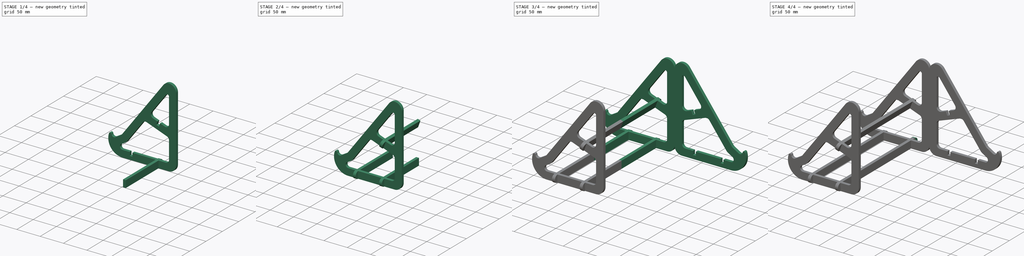
[diagram: build sequence overview — one tinted view per stage of 4, left to right]
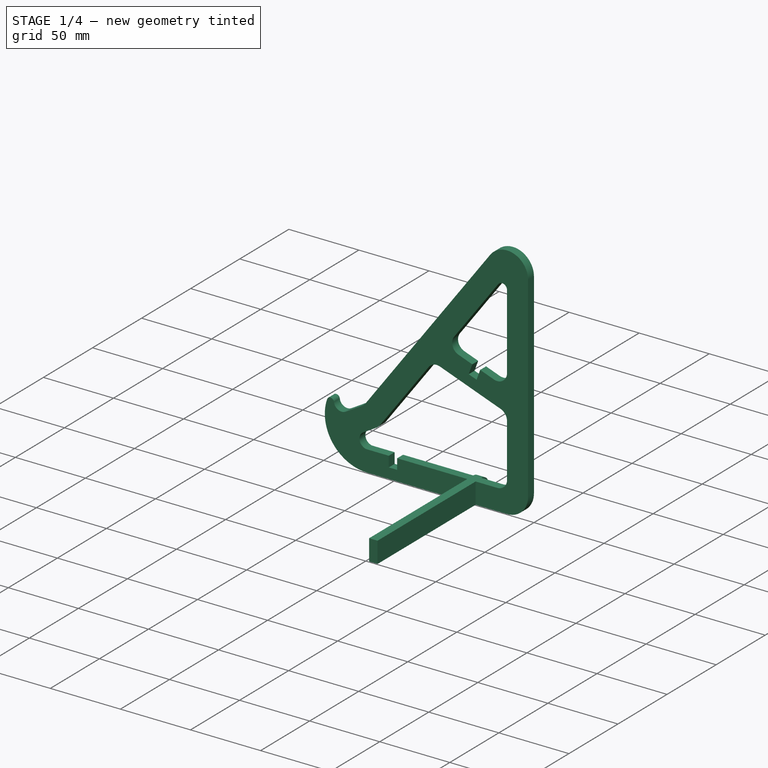
[diagram: stage 1 of 4 — iso view after this stage's code; geometry added in this stage tinted green]
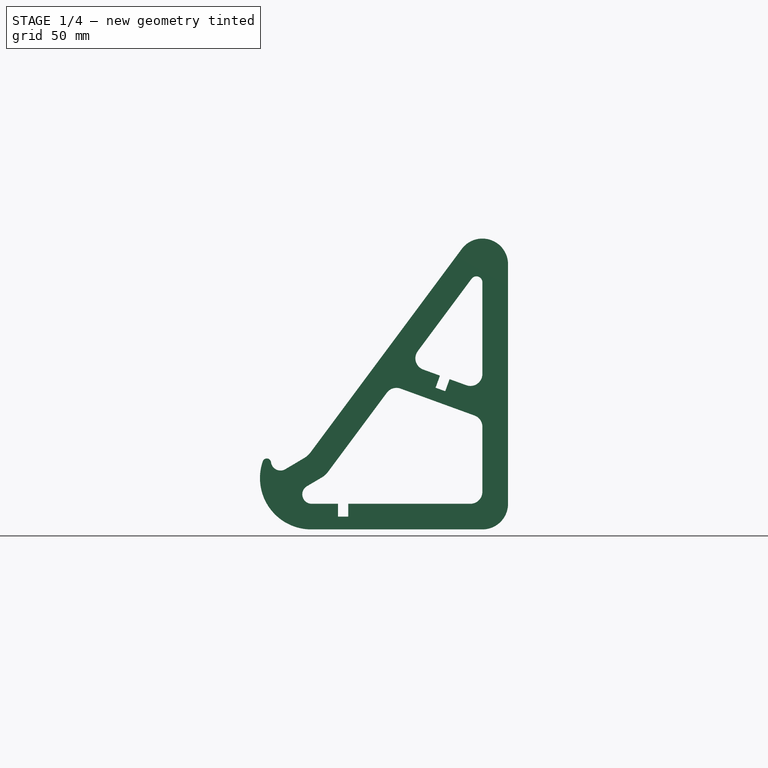
[diagram: stage 1 of 4 — front view after this stage's code; geometry added in this stage tinted green]
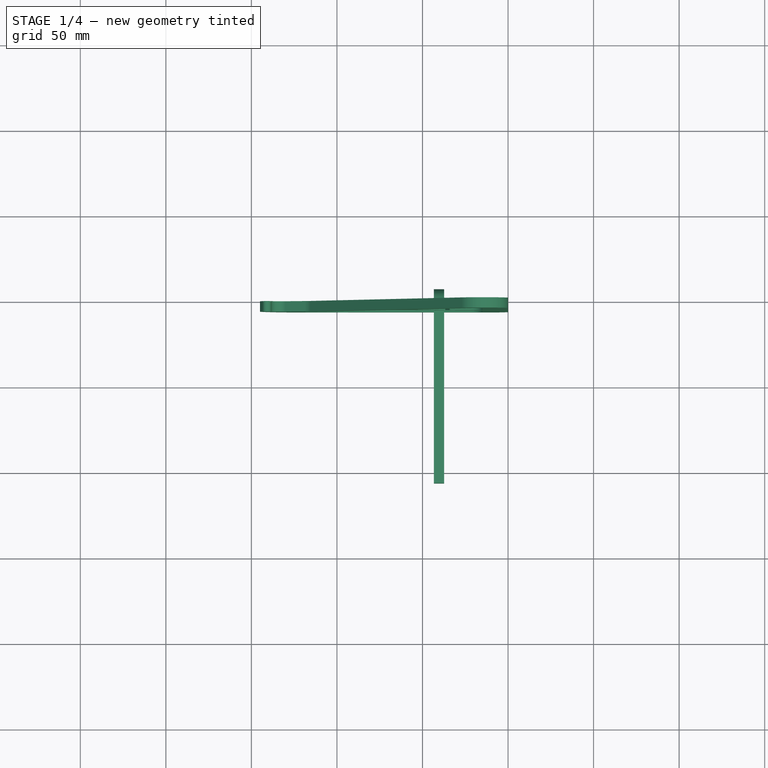
[diagram: stage 1 of 4 — top view after this stage's code; geometry added in this stage tinted green]
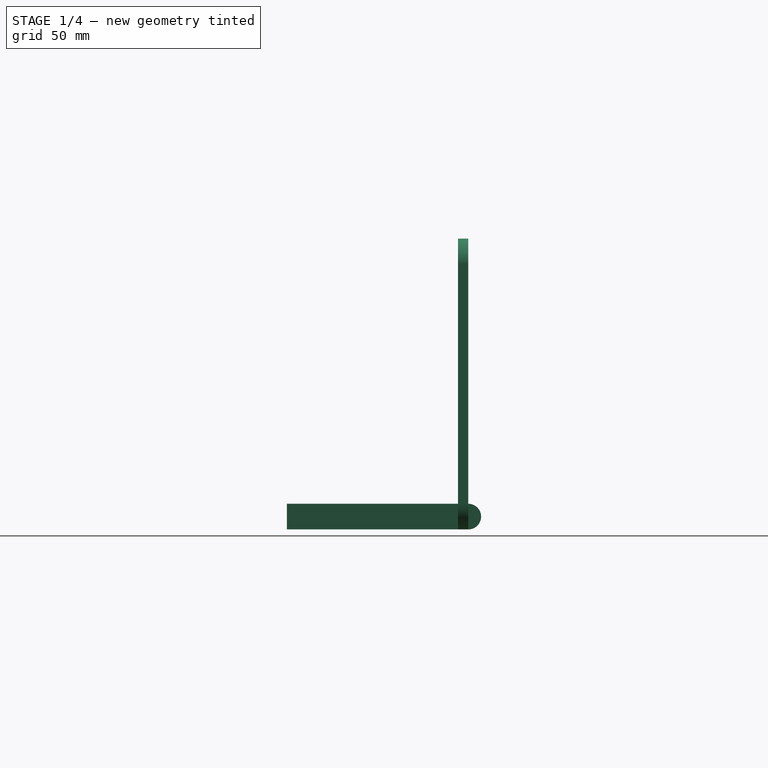
[diagram: stage 1 of 4 — right view after this stage's code; geometry added in this stage tinted green]
FCSTD DOCUMENT  (FreeCAD 0.19R24291 (Git))
Label: laptop-stand
License: All rights reserved
LicenseURL: http://en.wikipedia.org/wiki/All_rights_reserved
objects: PartDesign::Pad×5, PartDesign::ShapeBinder×5, PartDesign::Plane×5, Sketcher::SketchObject×4, PartDesign::Body×4, PartDesign::Mirrored×4, Part::Part2DObjectPython×3, Image::ImagePlane×1, Spreadsheet::Sheet×1, Part::Mirroring×1
note: 36 computed .brp shape members not serialized (recipe doc carries the construction recipe); baked Part::Feature solids carry a one-line shape summary decoded from their .brp

FEATURE [Sketcher::SketchObject] Sketch
  FullyConstrained = true
  MapMode = 5
  Placement = pos=(0,0,0) rot=(1,0,0;1.5708rad)
  Support = -> [XZ_Plane]
  expr: Constraints[86] = <<Params>>.material
  expr: Constraints[60] = <<Params>>.bezel
  expr: Constraints[108] = <<Params>>.material
  expr: Constraints[109] = <<Params>>.material
  expr: Constraints[33] = <<Params>>.bezel
  expr: Constraints[32] = <<Params>>.bezel
  expr: Constraints[38] = <<Params>>.bezel
  expr: Constraints[3] = <<Params>>.bezel
  expr: Constraints[64] = <<Params>>.bezel
  expr: Constraints[106] = <<Params>>.bezel / 2
  expr: Constraints[140] = <<Params>>.bezel
  expr: Constraints[5] = <<Params>>.bezel
  expr: Constraints[110] = <<Params>>.bezel / 2
  expr: Constraints[92] = <<Params>>.bezel / 2
  sketch-geometry (51):
    g0: LineSegment StartX=0 StartY=15 StartZ=0 EndX=0 EndY=155 EndZ=0
    g1: LineSegment StartX=-27.0376 StartY=163.95 StartZ=0 EndX=-115.514 EndY=44.9471 EndZ=0
    g2: ArcOfCircle CenterX=-15 CenterY=155 CenterZ=0 NormalX=0 NormalY=0 NormalZ=1 AngleXU=0 Radius=15 StartAngle=4e-16 EndAngle=2.50228
    g3: ArcOfCircle CenterX=-15 CenterY=15 CenterZ=0 NormalX=0 NormalY=0 NormalZ=1 AngleXU=0 Radius=15 StartAngle=4.71239 EndAngle=6.28319
    g4: LineSegment StartX=-15 StartY=0 StartZ=0 EndX=-115 EndY=0 EndZ=0
    g5: LineSegment StartX=-118.974 StartY=41.8306 StartZ=0 EndX=-130.157 EndY=35.2031 EndZ=0
    g6: ArcOfCircle CenterX=-125 CenterY=52 CenterZ=0 NormalX=0 NormalY=0 NormalZ=1 AngleXU=0 Radius=11.8209 StartAngle=5.24735 EndAngle=5.64387
    g7: ArcOfCircle CenterX=-115 CenterY=30 CenterZ=0 NormalX=0 NormalY=0 NormalZ=1 AngleXU=0 Radius=30 StartAngle=2.80835 EndAngle=4.71239
    g8: ArcOfCircle CenterX=-133 CenterY=40 CenterZ=0 NormalX=0 NormalY=0 NormalZ=1 AngleXU=0 Radius=5.57589 StartAngle=3.26595 EndAngle=5.24735
    g9: ArcOfCircle CenterX=-141 CenterY=39 CenterZ=0 NormalX=0 NormalY=0 NormalZ=1 AngleXU=0 Radius=2.48637 StartAngle=0.124355 EndAngle=2.80835
    g10: LineSegment StartX=-15 StartY=15 StartZ=0 EndX=-15 EndY=64.9015 EndZ=0
    g11: LineSegment StartX=-15 StartY=15 StartZ=0 EndX=-134.827 EndY=15 EndZ=0
    g12: LineSegment StartX=-106.691 StartY=31.6733 StartZ=0 EndX=-67.7202 EndY=84.09 EndZ=0
    g13: LineSegment StartX=-67.7202 StartY=84.09 StartZ=0 EndX=-15 EndY=64.9015 EndZ=0
    g14: LineSegment StartX=-106.691 StartY=31.6733 StartZ=0 EndX=-134.827 EndY=15 EndZ=0
    g15: LineSegment StartX=-67.7202 StartY=84.09 StartZ=0 EndX=-79.7578 EndY=93.0397 EndZ=0
    g16: ArcOfCircle CenterX=-114.757 CenterY=20.5 CenterZ=0 NormalX=0 NormalY=0 NormalZ=1 AngleXU=0 Radius=5.5 StartAngle=2.10576 EndAngle=4.71239
    g17: ArcOfCircle CenterX=-22 CenterY=22 CenterZ=0 NormalX=0 NormalY=0 NormalZ=1 AngleXU=0 Radius=7 StartAngle=4.71239 EndAngle=6.28319
    g18: ArcOfCircle CenterX=-22 CenterY=60 CenterZ=0 NormalX=0 NormalY=0 NormalZ=1 AngleXU=0 Radius=7 StartAngle=-9e-16 EndAngle=1.22173
    g19: ArcOfCircle CenterX=-65.214 CenterY=75.7286 CenterZ=0 NormalX=0 NormalY=0 NormalZ=1 AngleXU=0 Radius=7 StartAngle=1.22173 EndAngle=2.50228
    g20: LineSegment StartX=-58.3798 StartY=96.6531 StartZ=0 EndX=-15 EndY=155 EndZ=0
    g21: LineSegment StartX=-15 StartY=155 StartZ=0 EndX=-15 EndY=80.8641 EndZ=0
    g22: LineSegment StartX=-15 StartY=80.8641 StartZ=0 EndX=-58.3798 EndY=96.6531 EndZ=0
    g23: LineSegment StartX=-58.3798 StartY=96.6531 StartZ=0 EndX=-70.4174 EndY=105.603 EndZ=0
    g24: ArcOfCircle CenterX=-22 CenterY=90.8612 CenterZ=0 NormalX=0 NormalY=0 NormalZ=1 AngleXU=0 Radius=7 StartAngle=4.36332 EndAngle=6.28319
    g25: ArcOfCircle CenterX=-47.156 CenterY=100.017 CenterZ=0 NormalX=0 NormalY=0 NormalZ=1 AngleXU=0 Radius=7 StartAngle=2.50228 EndAngle=4.36332
    g26: ArcOfCircle CenterX=-18.5 CenterY=144.426 CenterZ=0 NormalX=0 NormalY=0 NormalZ=1 AngleXU=0 Radius=3.5 StartAngle=6.28319 EndAngle=8.78546
    g27: LineSegment StartX=-39.7912 StartY=89.8874 StartZ=0 EndX=-42.3564 EndY=82.8397 EndZ=0
    g28: LineSegment StartX=-42.3564 StartY=82.8397 StartZ=0 EndX=-36.7182 EndY=80.7876 EndZ=0
    g29: LineSegment StartX=-36.7182 StartY=80.7876 StartZ=0 EndX=-34.1531 EndY=87.8353 EndZ=0
    g30: LineSegment StartX=-24.3941 StartY=84.2833 StartZ=0 EndX=-34.1531 EndY=87.8353 EndZ=0
    g31: LineSegment StartX=-49.5501 StartY=93.4393 StartZ=0 EndX=-39.7912 EndY=89.8874 EndZ=0
    g32: LineSegment StartX=-37.3787 StartY=15 StartZ=0 EndX=-37.3787 EndY=7.5 EndZ=0
    g33: LineSegment StartX=-37.3787 StartY=7.5 StartZ=0 EndX=-43.3787 EndY=7.5 EndZ=0
    g34: LineSegment StartX=-43.3787 StartY=7.5 StartZ=0 EndX=-43.3787 EndY=15 EndZ=0
    g35: LineSegment StartX=-99.3787 StartY=15 StartZ=0 EndX=-99.3787 EndY=7.5 EndZ=0
    g36: LineSegment StartX=-99.3787 StartY=7.5 StartZ=0 EndX=-93.3787 EndY=7.5 EndZ=0
    g37: LineSegment StartX=-93.3787 StartY=7.5 StartZ=0 EndX=-93.3787 EndY=15 EndZ=0
    g38: LineSegment StartX=-114.757 StartY=15 StartZ=0 EndX=-99.3787 EndY=15 EndZ=0
    g39: LineSegment StartX=-37.3787 StartY=15 StartZ=0 EndX=-22 EndY=15 EndZ=0
    g40: LineSegment StartX=-93.3787 StartY=15 StartZ=0 EndX=-43.3787 EndY=15 EndZ=0
    g41: LineSegment StartX=-15 StartY=60 StartZ=0 EndX=-15 EndY=22 EndZ=0
    g42: LineSegment StartX=-62.8199 StartY=82.3065 StartZ=0 EndX=-19.6059 EndY=66.5778 EndZ=0
    g43: LineSegment StartX=-15 StartY=144.426 StartZ=0 EndX=-15 EndY=90.8612 EndZ=0
    g44: LineSegment StartX=-21.3088 StartY=146.515 StartZ=0 EndX=-52.7735 EndY=104.194 EndZ=0
    g45: LineSegment StartX=-118.974 StartY=41.8306 StartZ=0 EndX=-115.514 EndY=44.9471 EndZ=0
    g46: LineSegment StartX=-117.244 StartY=43.3889 StartZ=0 EndX=-106.691 EndY=31.6733 EndZ=0
    g47: ArcOfCircle CenterX=-114.76 CenterY=40.632 CenterZ=0 NormalX=0 NormalY=0 NormalZ=1 AngleXU=0 Radius=11.8209 StartAngle=5.24735 EndAngle=5.64387
    g48: LineSegment StartX=-117.561 StartY=25.2316 StartZ=0 EndX=-108.734 EndY=30.4626 EndZ=0
    g49: LineSegment StartX=-70.8316 StartY=79.9051 StartZ=0 EndX=-105.274 EndY=33.5791 EndZ=0
    g50: LineSegment StartX=-24.3941 StartY=84.2833 StartZ=0 EndX=-29.5244 EndY=70.1879 EndZ=0
  constraints (147):
    c: Tangent(g2,g1) = -1.5708
    c: Tangent(g2,g0) = -1.5708
    c: Vertical(g-1,g0)
    c: Radius(g2) = 15
    c: DistanceY(g0,g0) = 140
    c: Radius(g3) = 15
    c: Vertical(g0)
    c: Tangent(g3,g0) = -1.5708
    c: Horizontal(g4)
    c: Horizontal(g3,g-1)
    c: DistanceX(g4,g4) = 100
    c: Tangent(g4,g3) = 1.5708
    c: Tangent(g6,g1) = 1.5708
    c: Tangent(g6,g5) = 1.5708
    c: Radius(g7) = 30
    c: Tangent(g8,g5) = 1.5708
    c: Tangent(g9,g8) = 1.5708
    c: Tangent(g7,g4) = 1.5708
    c: Tangent(g7,g9) = -1.5708
    c: DistanceX(g9,g-1) = 141
    c: DistanceY(g-1,g9) = 39
    c: DistanceX(g8,g-1) = 133
    c: DistanceY(g-1,g8) = 40
    c: DistanceY(g-1,g6) = 52
    c: DistanceX(g6,g-1) = 125
    c: Distance(g5) = 13
    c: Horizontal(g11)
    c: Coincident(g13,g12)
    c: Coincident(g10,g13)
    c: Coincident(g11,g10)
    c: Coincident(g14,g12)
    c: Coincident(g11,g14)
    c: DistanceY(g-1,g10) = 15
    c: DistanceX(g10,g-1) = 15
    c: Parallel(g12,g1)
    c: Coincident(g15,g12)
    c: PointOnObject(g15,g1)
    c: Perpendicular(g1,g15)
    c: Distance(g15) = 15
    c: Parallel(g5,g14)
    c: PointOnObject(g16,g11)
    c: Tangent(g16,g14)
    c: Radius(g16) = 5.5
    c: PointOnObject(g17,g11)
    c: Tangent(g17,g11)
    c: Tangent(g17,g10)
    c: Radius(g17) = 7
    c: PointOnObject(g18,g10)
    c: Tangent(g18,g13)
    c: Radius(g18) = 7
    c: PointOnObject(g19,g12)
    c: Tangent(g13,g19)
    c: Tangent(g19,g12)
    c: Radius(g19) = 7
    c: Vertical(g21)
    c: Coincident(g22,g21)
    c: Coincident(g22,g20)
    c: Parallel(g22,g13)
    c: Parallel(g20,g1)
    c: Coincident(g21,g20)
    c: DistanceX(g21,g-1) = 15
    c: Coincident(g23,g20)
    c: PointOnObject(g23,g1)
    c: Perpendicular(g20,g23)
    c: Distance(g23) = 15
    c: PointOnObject(g24,g22)
    c: PointOnObject(g24,g21)
    c: Tangent(g24,g21)
    c: Tangent(g24,g22)
    c: Radius(g24) = 7
    c: PointOnObject(g25,g22)
    c: Tangent(g22,g25)
    c: Tangent(g25,g20)
    c: Radius(g25) = 7
    c: PointOnObject(g26,g20)
    c: PointOnObject(g26,g21)
    c: Tangent(g26,g20)
    c: Tangent(g21,g26)
    c: Radius(g26) = 3.5
    c: PointOnObject(g27,g22)
    c: Coincident(g28,g27)
    c: Coincident(g29,g28)
    c: PointOnObject(g29,g22)
    c: Perpendicular(g28,g27)
    c: Perpendicular(g28,g29)
    c: Perpendicular(g22,g27)
    c: Distance(g28) = 6
    c: Coincident(g30,g24)
    c: Coincident(g30,g29)
    c: Coincident(g31,g25)
    c: Coincident(g31,g27)
    c: Equal(g31,g30)
    c: Distance(g27) = 7.5
    c: PointOnObject(g32,g11)
    c: Vertical(g32)
    c: Coincident(g33,g32)
    c: Horizontal(g33)
    c: Coincident(g34,g33)
    c: PointOnObject(g34,g11)
    c: Vertical(g34)
    c: PointOnObject(g35,g11)
    c: Coincident(g36,g35)
    c: Horizontal(g36)
    c: PointOnObject(g37,g11)
    c: Vertical(g37)
    c: Vertical(g35)
    c: DistanceY(g37,g37) = 7.5
    c: Coincident(g36,g37)
    c: DistanceX(g36,g36) = 6
    c: DistanceX(g33,g33) = 6
    c: DistanceY(g34,g34) = 7.5
    c: Coincident(g39,g32)
    c: Equal(g39,g38)
    c: Coincident(g40,g37)
    c: DistanceX(g40,g40) = 50
    c: Coincident(g40,g34)
    c: Coincident(g35,g38)
    c: Coincident(g39,g17)
    c: Coincident(g41,g17)
    c: Coincident(g43,g26)
    c: Coincident(g44,g26)
    c: Coincident(g43,g24)
    c: Coincident(g45,g5)
    c: Coincident(g45,g1)
    c: PointOnObject(g46,g45)
    c: Symmetric(g1,g5,g46)
    c: Coincident(g12,g46)
    c: Tangent(g41,g18) = 1.5708
    c: PointOnObject(g47,g14)
    c: PointOnObject(g47,g12)
    c: Coincident(g49,g19)
    c: Vertical(g41)
    c: Tangent(g42,g19) = 1.5708
    c: Tangent(g42,g18) = 1.5708
    c: DistanceY(g-1,g18) = 60
    c: Angle(g42,g-1) = 0.349066
    c: Tangent(g44,g25) = -1.5708
    c: Coincident(g50,g24)
    c: PointOnObject(g50,g42)
    c: Perpendicular(g30,g50)
    c: Distance(g50) = 15
    c: Tangent(g48,g47) = -1.5708
    c: Tangent(g49,g47) = 1.5708
    c: Equal(g6,g47)
    c: Tangent(g48,g16) = 1.5708
    c: Tangent(g38,g16) = -1.5708
    c: DistanceX(g18,g-1) = 22
FEATURE [Image::ImagePlane] ImagePlane
  Placement = pos=(-54,2.82e-14,127) rot=(-1,0,0;4.71239rad)
  XSize = 265.327
  YSize = 353.88
FEATURE [Part::Part2DObjectPython] Shape2DView  # Draft 2D object (typed FeaturePython)
  Base = -> Sketch
  FuseArch = false
  HiddenLines = false
  InPlace = true
  Projection = (0,-1,0)
  ProjectionMode = 0
  SegmentLength = 0.05
  Tessellation = false
  VisibleOnly = false
FEATURE [Spreadsheet::Sheet] Spreadsheet  label="Params"
  cells = A1=material; B1(material)=6; A2=bezel; B2(bezel)=15
FEATURE [PartDesign::Pad] Pad
  Direction = (1,1,1)
  Length = 6
  Length2 = 100
  Placement = pos=(0,0,0) rot=(1,0,0;1.5708rad)
  Profile = -> Sketch
  Type = 0
  expr: Length = <<Params>>.material
FEATURE [PartDesign::Body] Body002
  Group = -> [ShapeBinder,Pad002]
  Origin = -> Origin002
  Tip = -> Pad002
FEATURE [PartDesign::Plane] DatumPlane001
  AttachmentOffset = pos=(0,0,0) rot=(1,0,0;1.5708rad)
  Length = 226.221
  MapMode = 45
  Placement = pos=(-68.3787,-3,11.25) rot=(0,1,0;4.71239rad)
  ResizeMode = 0
  Support = -> [Pad]
  Width = 156.225
FEATURE [Part::Part2DObjectPython] Shape2DView001  label="support"  # Draft 2D object (typed FeaturePython)
  Base = -> Sketch001
  FuseArch = false
  HiddenLines = false
  InPlace = true
  Projection = (-1,0,0)
  ProjectionMode = 0
  SegmentLength = 0.05
  Tessellation = false
  VisibleOnly = false
FEATURE [Part::Part2DObjectPython] Shape2DView002  label="side001"  # Draft 2D object (typed FeaturePython)
  Base = -> Sketch
  FuseArch = false
  HiddenLines = false
  InPlace = true
  Projection = (0,-1,0)
  ProjectionMode = 0
  SegmentLength = 0.05
  Tessellation = false
  VisibleOnly = false
FEATURE [PartDesign::ShapeBinder] CopyPad001
  Placement = pos=(0,0,0) rot=(1,0,0;1.5708rad)
  TraceSupport = false
FEATURE [Sketcher::SketchObject] Sketch002
  ExternalGeometry = -> [CopyPad001]
  FullyConstrained = true
  MapMode = 5
  Placement = pos=(-37.3787,0,0) rot=(0.707107,0,-0.707107;3.14159rad)
  Support = -> [Pad]
  expr: Constraints[18] = <<Params>>.material
  sketch-geometry (7):
    g0: LineSegment StartX=0 StartY=1.5e-15 StartZ=0 EndX=-7.5 EndY=-2.4e-15 EndZ=0
    g1: ArcOfCircle CenterX=-7.5 CenterY=-2.4e-15 CenterZ=0 NormalX=0 NormalY=0 NormalZ=1 AngleXU=0 Radius=7.5 StartAngle=3.14159 EndAngle=6.28319
    g2: LineSegment StartX=0 StartY=6 StartZ=0 EndX=0 EndY=106 EndZ=0
    g3: LineSegment StartX=0 StartY=106 StartZ=0 EndX=-15 EndY=106 EndZ=0
    g4: LineSegment StartX=-15 StartY=-2.4e-15 StartZ=0 EndX=-15 EndY=106 EndZ=0
    g5: LineSegment StartX=-7.5 StartY=-2.4e-15 StartZ=0 EndX=-7.5 EndY=6 EndZ=0
    g6: LineSegment StartX=-7.5 StartY=6 StartZ=0 EndX=0 EndY=6 EndZ=0
  constraints (19):
    c: Coincident(g0,g-1)
    c: Coincident(g0,g-3)
    c: PointOnObject(g2,g-2)
    c: Coincident(g1,g0)
    c: Coincident(g1,g0)
    c: Horizontal(g0,g1)
    c: Vertical(g2)
    c: Coincident(g3,g2)
    c: Horizontal(g3)
    c: Coincident(g4,g1)
    c: Coincident(g4,g3)
    c: Vertical(g4)
    c: DistanceY(g2,g2) = 100
    c: Coincident(g5,g0)
    c: Vertical(g5)
    c: Coincident(g6,g5)
    c: Coincident(g6,g2)
    c: Horizontal(g6)
    c: DistanceY(g5,g5) = 6
FEATURE [PartDesign::ShapeBinder] ShapeBinder001
  Support = -> [Pad]
  TraceSupport = false
FEATURE [PartDesign::Pad] Pad003
  Direction = (1,1,1)
  Length = 6
  Length2 = 100
  Placement = pos=(0,0,0) rot=(1,0,0;1.5708rad)
  Profile = -> Sketch002
  Type = 0
  expr: Length = <<Params>>.material
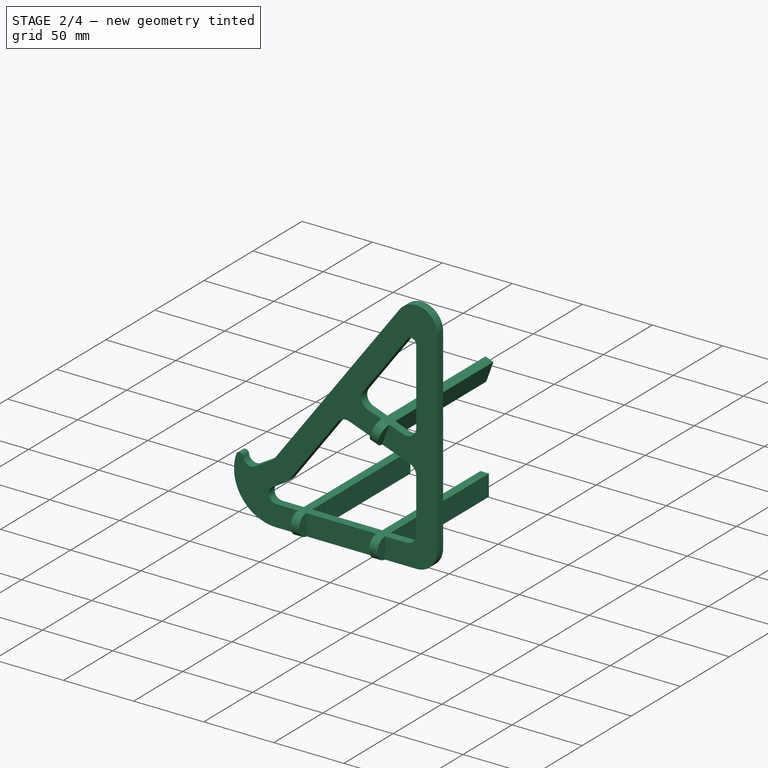
[diagram: stage 2 of 4 — iso view after this stage's code; geometry added in this stage tinted green]
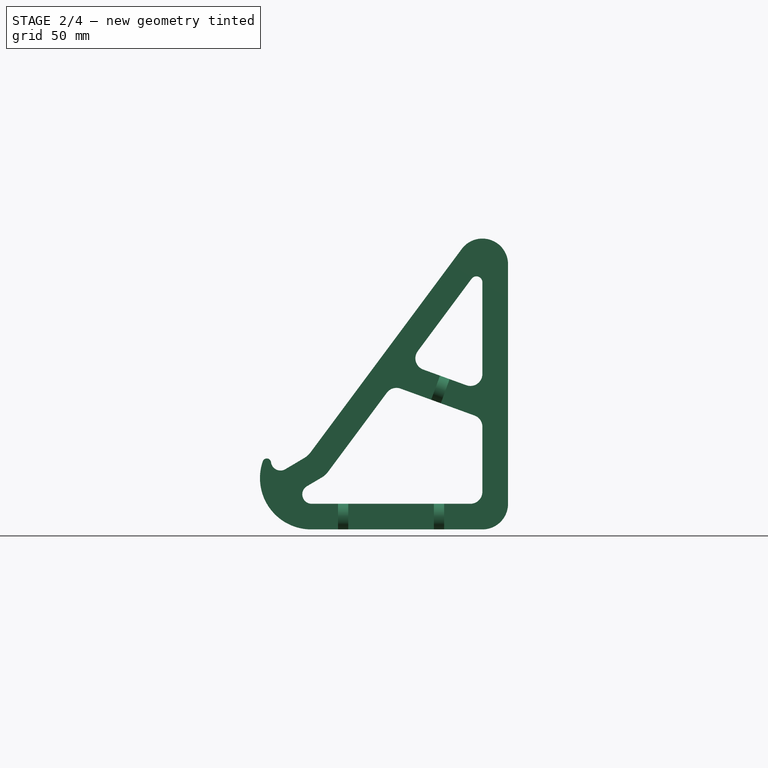
[diagram: stage 2 of 4 — front view after this stage's code; geometry added in this stage tinted green]
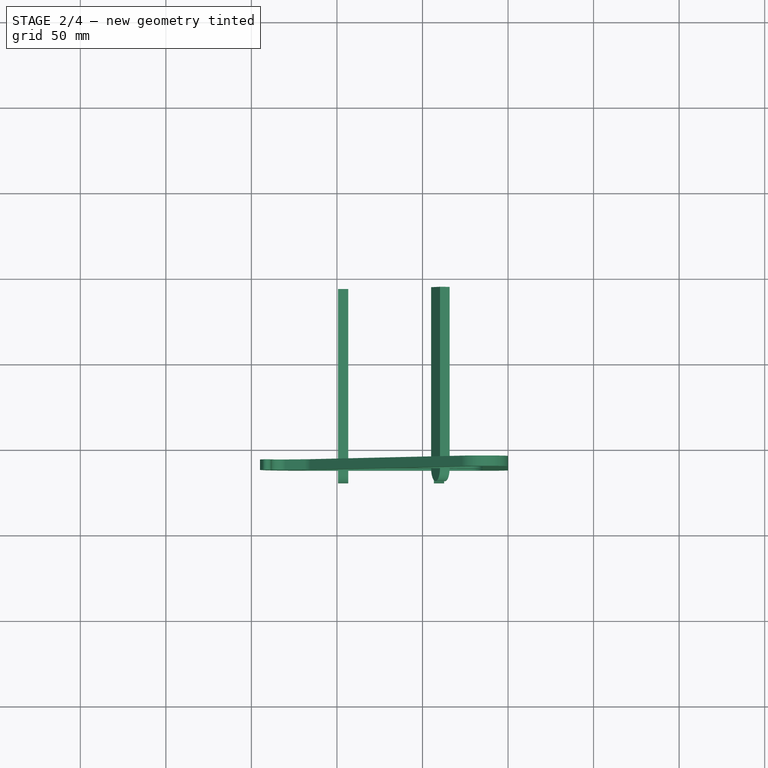
[diagram: stage 2 of 4 — top view after this stage's code; geometry added in this stage tinted green]
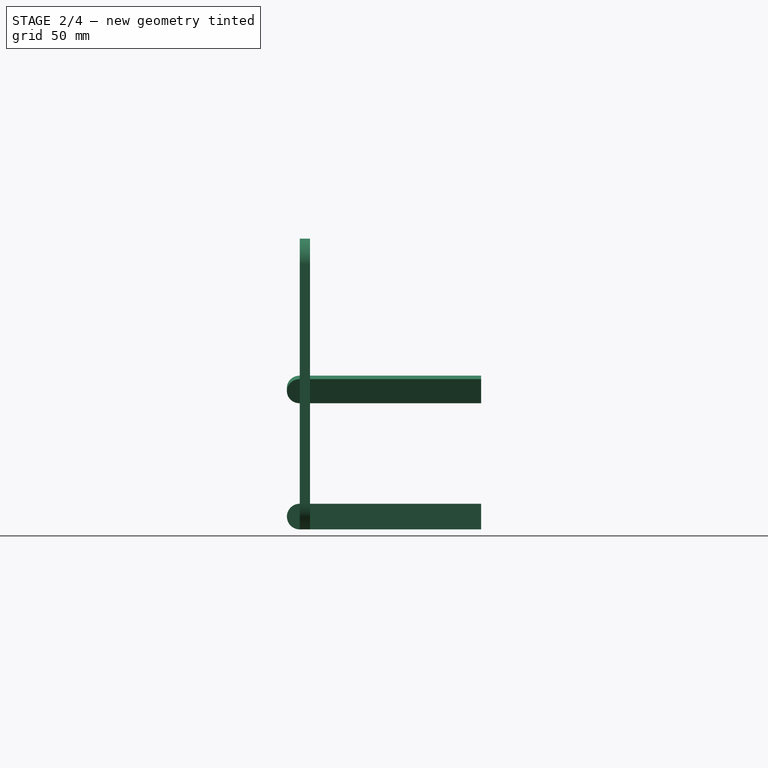
[diagram: stage 2 of 4 — right view after this stage's code; geometry added in this stage tinted green]
FEATURE [PartDesign::Plane] CopyDatumPlane001
  Length = 226.962
  Placement = pos=(-68.3787,-3,11.25) rot=(0,-1,0;1.5708rad)
  ResizeMode = 0
  Width = 162.965
FEATURE [PartDesign::Mirrored] Mirrored
  BaseFeature = -> Pad003
  MirrorPlane = -> CopyDatumPlane001
  Originals = -> [Pad003]
  Placement = pos=(0,0,0) rot=(1,0,0;1.5708rad)
FEATURE [PartDesign::ShapeBinder] ShapeBinder002
  Placement = pos=(0,0,0) rot=(1,0,0;1.5708rad)
  Support = -> [Mirrored]
  TraceSupport = false
FEATURE [Sketcher::SketchObject] Sketch003
  ExternalGeometry = -> [ShapeBinder002]
  FullyConstrained = true
  MapMode = 5
  Placement = pos=(-58.3876,-4.7e-15,21.2514) rot=(-0.573576,0,0.819152;3.14159rad)
  Support = -> [Mirrored]
  expr: Constraints[4] = <<Params>>.bezel / 2
  sketch-geometry (7):
    g0: LineSegment StartX=-63.3571 StartY=0 StartZ=0 EndX=-63.3571 EndY=6 EndZ=0
    g1: LineSegment StartX=-63.3571 StartY=0 StartZ=0 EndX=-55.8571 EndY=-1.8e-15 EndZ=0
    g2: ArcOfCircle CenterX=-63.3571 CenterY=0 CenterZ=0 NormalX=0 NormalY=0 NormalZ=1 AngleXU=0 Radius=7.5 StartAngle=3.14159 EndAngle=6.28319
    g3: LineSegment StartX=-63.3571 StartY=6 StartZ=0 EndX=-55.8571 EndY=6 EndZ=0
    g4: LineSegment StartX=-55.8571 StartY=6 StartZ=0 EndX=-55.8571 EndY=106 EndZ=0
    g5: LineSegment StartX=-55.8571 StartY=106 StartZ=0 EndX=-70.8571 EndY=106 EndZ=0
    g6: LineSegment StartX=-70.8571 StartY=106 StartZ=0 EndX=-70.8571 EndY=0 EndZ=0
  constraints (19):
    c: Coincident(g0,g-3)
    c: Coincident(g0,g-3)
    c: Coincident(g1,g0)
    c: PointOnObject(g1,g-1)
    c: DistanceX(g1,g1) = 7.5
    c: PointOnObject(g2,g-1)
    c: Coincident(g2,g0)
    c: Coincident(g2,g1)
    c: Coincident(g3,g0)
    c: Horizontal(g3)
    c: Equal(g1,g3)
    c: Coincident(g4,g3)
    c: Vertical(g4)
    c: Coincident(g5,g4)
    c: Horizontal(g5)
    c: Coincident(g6,g5)
    c: Vertical(g6)
    c: Coincident(g2,g6)
    c: DistanceY(g4,g4) = 100
FEATURE [PartDesign::Pad] Pad004
  BaseFeature = -> Mirrored
  Direction = (1,1,1)
  Length = 6
  Length2 = 100
  Placement = pos=(0,0,0) rot=(1,0,0;1.5708rad)
  Profile = -> Sketch003
  Type = 0
  expr: Length = <<Params>>.material
FEATURE [PartDesign::Plane] DatumPlane003
  AttachmentOffset = pos=(0,0,100) rot=(0,0,1;0rad)
  Length = 206.263
  MapMode = 5
  Placement = pos=(0,-100,-2.22e-14) rot=(1,0,0;1.5708rad)
  ResizeMode = 0
  Support = -> [XZ_Plane]
  Width = 231.396
FEATURE [PartDesign::Body] Body  label="side"
  Group = -> [Sketch,Pad,DatumPlane001,Mirrored003,DatumPlane003]
  Origin = -> Origin
  Tip = -> Mirrored003
FEATURE [Part::Mirroring] Part__Mirroring  label="Pad004 (Mirror #1)"
  Base = (0,0,34)
  Normal = (0,1,0)
  Placement = pos=(0,-212,0) rot=(0,0,1;0rad)
  Source = -> Pad004
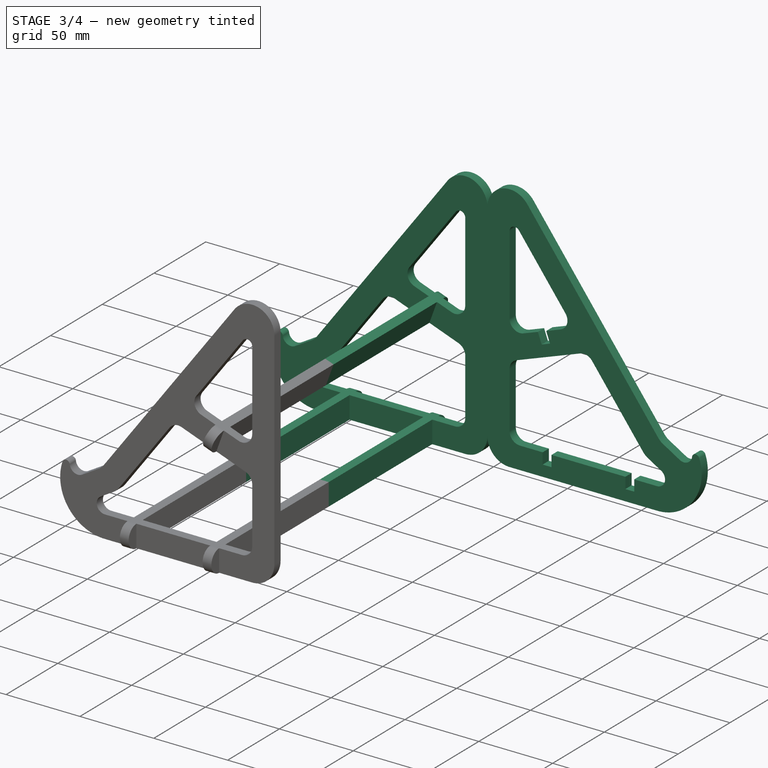
[diagram: stage 3 of 4 — iso view after this stage's code; geometry added in this stage tinted green]
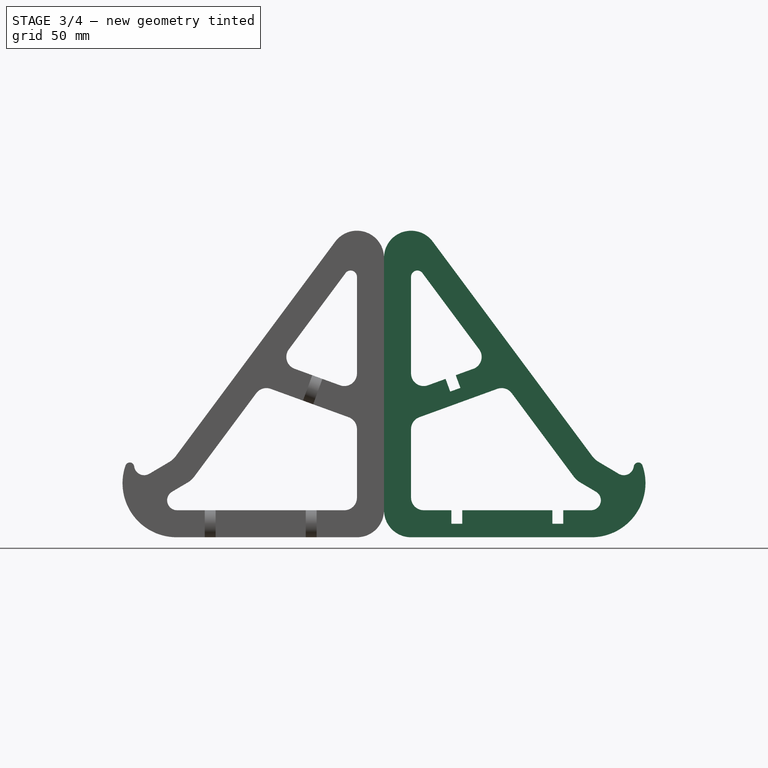
[diagram: stage 3 of 4 — front view after this stage's code; geometry added in this stage tinted green]
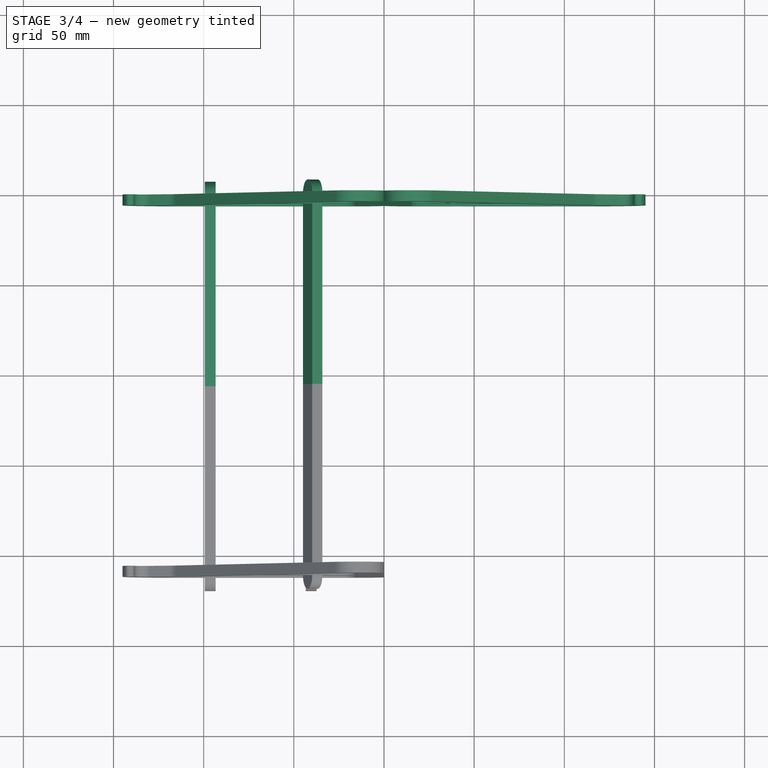
[diagram: stage 3 of 4 — top view after this stage's code; geometry added in this stage tinted green]
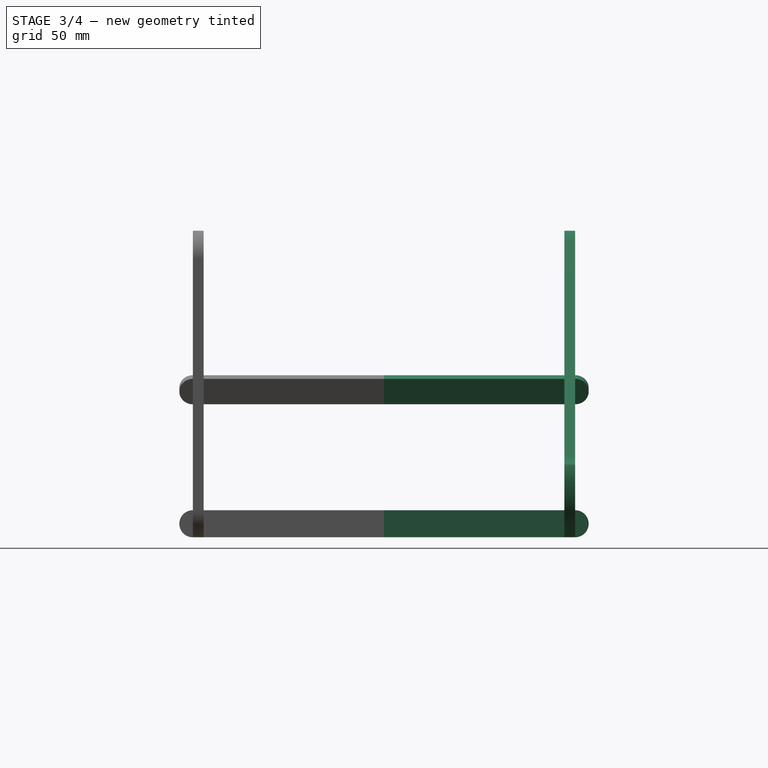
[diagram: stage 3 of 4 — right view after this stage's code; geometry added in this stage tinted green]
FEATURE [PartDesign::Plane] DatumPlane002
  Length = 206.263
  MapMode = 5
  Placement = pos=(0,-106,-2.35e-14) rot=(1,0,0;1.5708rad)
  ResizeMode = 0
  Support = -> [Pad004]
  Width = 231.396
FEATURE [PartDesign::Mirrored] Mirrored001
  BaseFeature = -> Pad004
  MirrorPlane = -> DatumPlane002
  Originals = -> [Pad004]
  Placement = pos=(0,0,0) rot=(1,0,0;1.5708rad)
FEATURE [PartDesign::Mirrored] Mirrored002
  BaseFeature = -> Mirrored001
  MirrorPlane = -> DatumPlane002
  Originals = -> [Pad003]
  Placement = pos=(0,0,0) rot=(1,0,0;1.5708rad)
FEATURE [PartDesign::Body] Body003
  Group = -> [CopyPad001,Sketch002,ShapeBinder001,Pad003,Mirrored,CopyDatumPlane001,ShapeBinder002,Sketch003,Pad004,DatumPlane002,Mirrored001,Mirrored002]
  Origin = -> Origin003
  Tip = -> Mirrored002
FEATURE [PartDesign::Mirrored] Mirrored003
  BaseFeature = -> Pad
  MirrorPlane = -> Sketch [V_Axis]
  Originals = -> [Pad]
  Placement = pos=(0,0,0) rot=(1,0,0;1.5708rad)
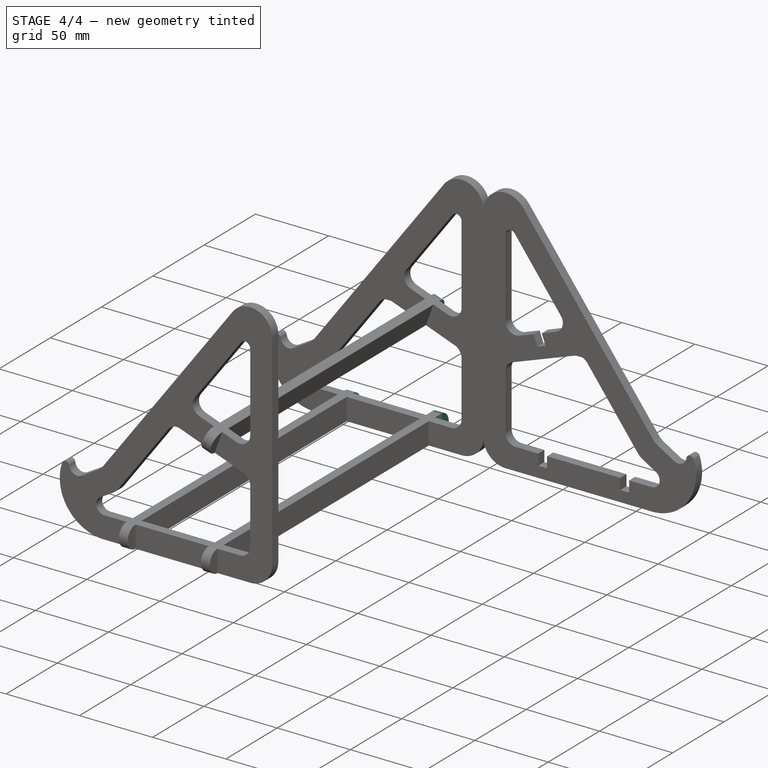
[diagram: stage 4 of 4 — iso view after this stage's code; geometry added in this stage tinted green]
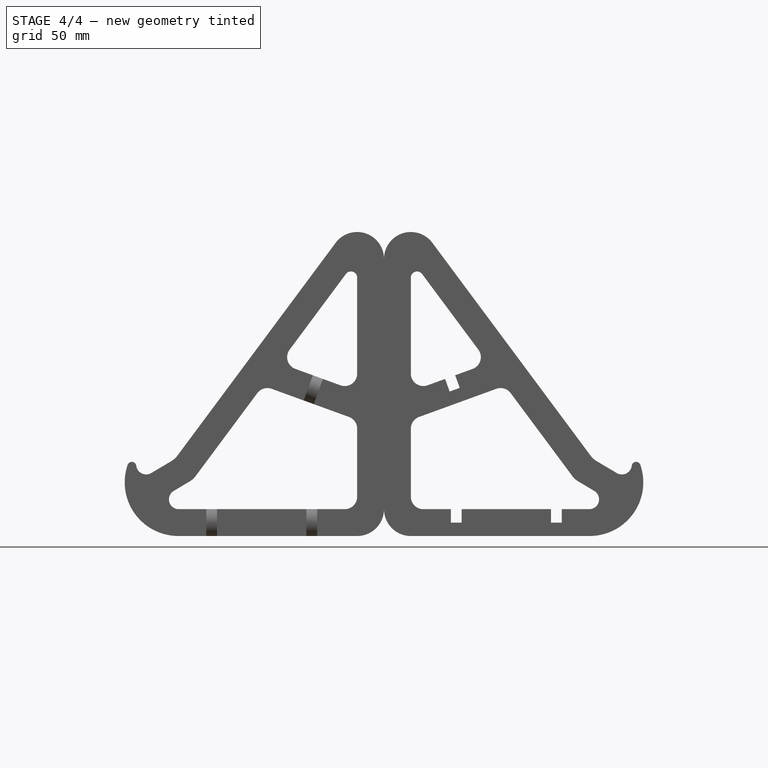
[diagram: stage 4 of 4 — front view after this stage's code; geometry added in this stage tinted green]
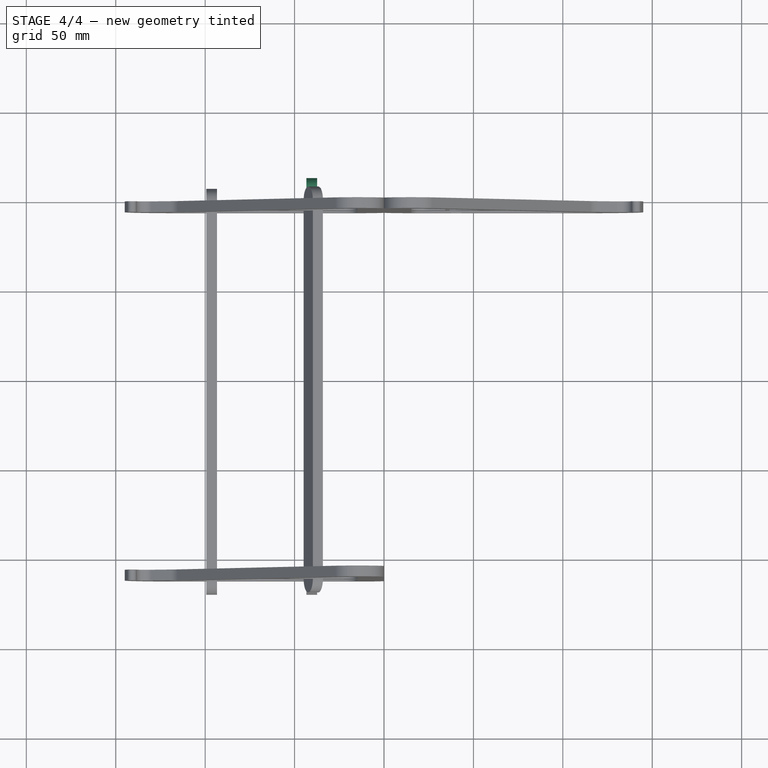
[diagram: stage 4 of 4 — top view after this stage's code; geometry added in this stage tinted green]
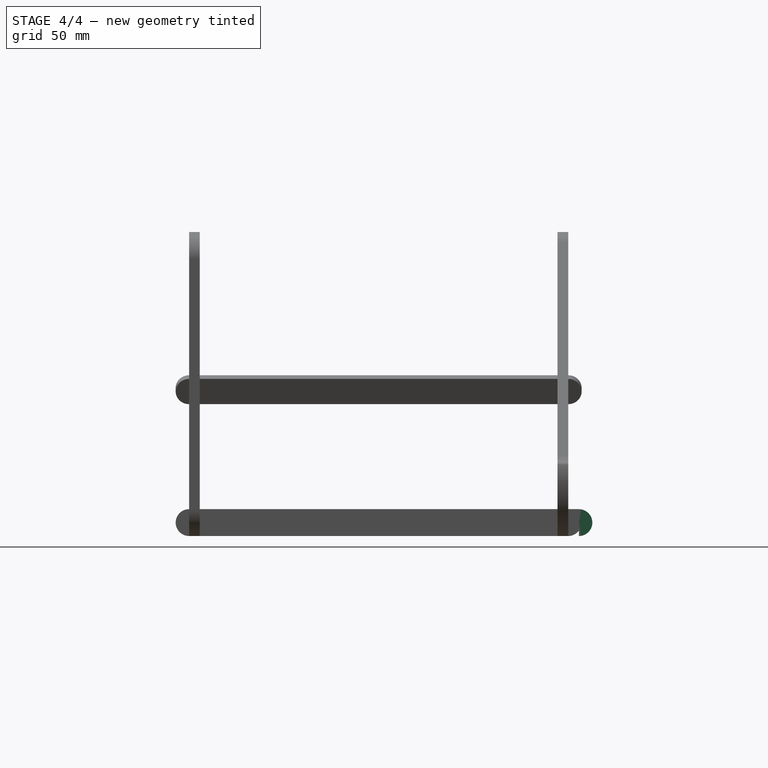
[diagram: stage 4 of 4 — right view after this stage's code; geometry added in this stage tinted green]
FEATURE [Sketcher::SketchObject] Sketch001
  FullyConstrained = true
  MapMode = 2
  Placement = pos=(0,0,0) rot=(-0.57735,0.57735,0.57735;4.18879rad)
  Support = -> [YZ_Plane001]
  expr: Constraints[16] = <<Params>>.material
  expr: Constraints[17] = <<Params>>.bezel
  expr: Constraints[18] = <<Params>>.bezel / 2
  sketch-geometry (7):
    g0: LineSegment StartX=0 StartY=0 StartZ=0 EndX=0 EndY=7.5 EndZ=0
    g1: LineSegment StartX=0 StartY=7.5 StartZ=0 EndX=-6 EndY=7.5 EndZ=0
    g2: LineSegment StartX=-6 StartY=7.5 StartZ=0 EndX=-6 EndY=0 EndZ=0
    g3: LineSegment StartX=-6 StartY=15 StartZ=0 EndX=100 EndY=15 EndZ=0
    g4: LineSegment StartX=100 StartY=15 StartZ=0 EndX=100 EndY=0 EndZ=0
    g5: LineSegment StartX=100 StartY=0 StartZ=0 EndX=0 EndY=0 EndZ=0
    g6: ArcOfCircle CenterX=-6 CenterY=7.5 CenterZ=0 NormalX=0 NormalY=0 NormalZ=1 AngleXU=0 Radius=7.5 StartAngle=1.5708 EndAngle=4.71239
  constraints (20):
    c: Coincident(g0,g-1)
    c: PointOnObject(g0,g-2)
    c: Coincident(g1,g0)
    c: Coincident(g2,g1)
    c: PointOnObject(g2,g-1)
    c: Vertical(g2)
    c: Horizontal(g1)
    c: Horizontal(g3)
    c: Coincident(g4,g3)
    c: PointOnObject(g4,g-1)
    c: Vertical(g4)
    c: Coincident(g5,g4)
    c: Coincident(g5,g0)
    c: Vertical(g1,g3)
    c: Coincident(g6,g2)
    c: Tangent(g6,g3) = 1.5708
    c: DistanceX(g1,g1) = 6
    c: DistanceY(g4,g4) = 15
    c: DistanceY(g0,g0) = 7.5
    c: DistanceX(g5,g5) = 100
FEATURE [PartDesign::ShapeBinder] CopyPad
  Placement = pos=(0,0,0) rot=(1,0,0;1.5708rad)
  TraceSupport = false
FEATURE [PartDesign::Plane] DatumPlane
  Length = 65.8114
  MapMode = 5
  Placement = pos=(-37.3787,0,0) rot=(0.707107,0,-0.707107;3.14159rad)
  ResizeMode = 0
  Support = -> [CopyPad]
  Width = 140.811
FEATURE [PartDesign::Pad] Pad001
  Direction = (1,1,1)
  Length = 6
  Length2 = 55
  Placement = pos=(0,0,0) rot=(0.57735,0.57735,0.57735;2.0944rad)
  Profile = -> Sketch001
  Type = 3
  UpToFace = -> DatumPlane [Plane]
  expr: Length = <<Params>>.material
FEATURE [PartDesign::Body] Body001
  Group = -> [Sketch001,DatumPlane,CopyPad,Pad001]
  Origin = -> Origin001
  Tip = -> Pad001
FEATURE [PartDesign::ShapeBinder] ShapeBinder
  Placement = pos=(0,0,0) rot=(0.57735,0.57735,0.57735;2.0944rad)
  Support = -> [Pad001]
  TraceSupport = false
FEATURE [PartDesign::Pad] Pad002
  Direction = (1,1,1)
  Length = 6
  Length2 = 100
  Placement = pos=(0,0,0) rot=(0.57735,0.57735,0.57735;2.0944rad)
  Profile = -> ShapeBinder
  Type = 0
  expr: Length = <<Params>>.material
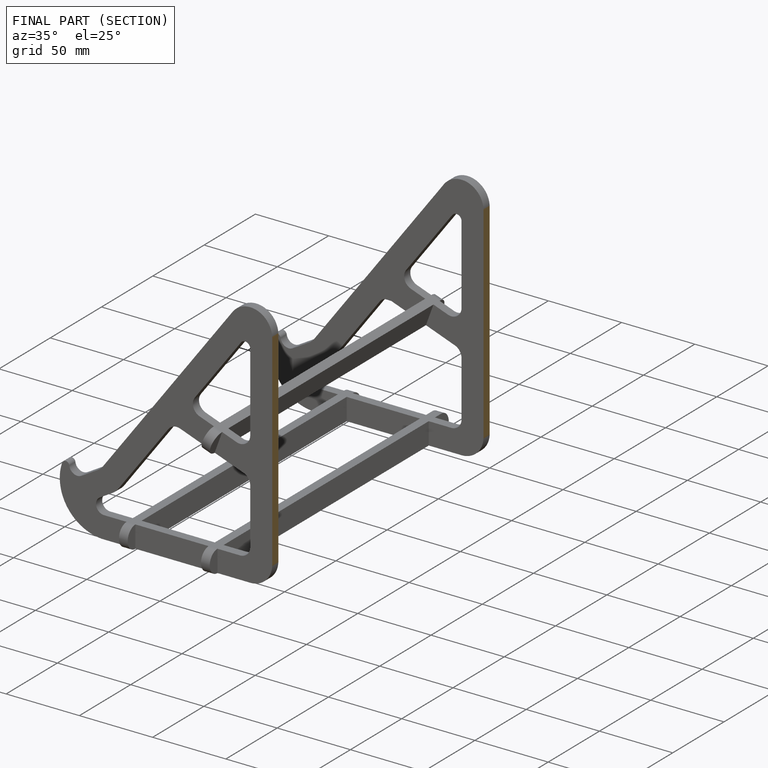
[diagram: finished part — half-section view (interior)]
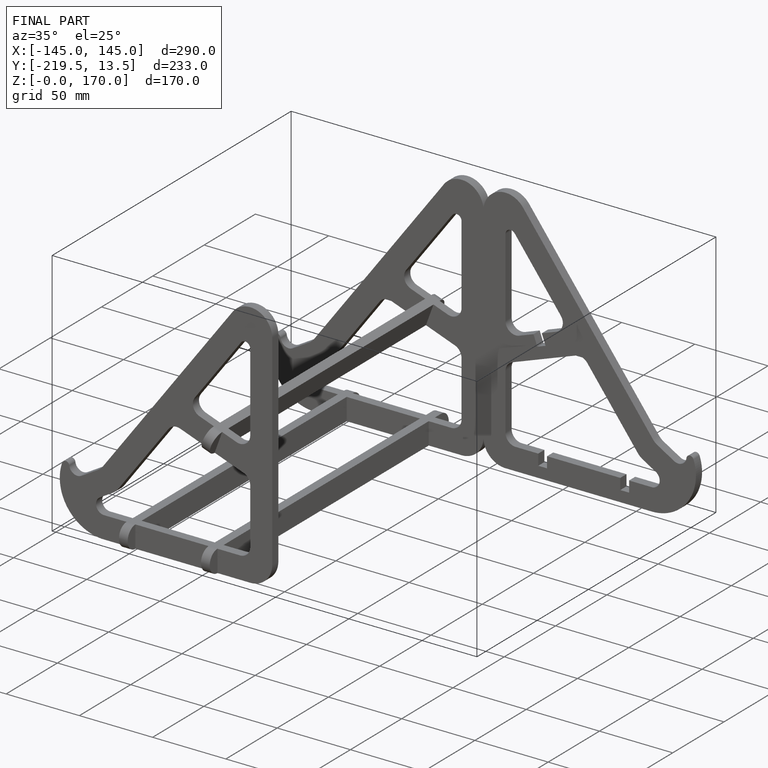
[diagram: finished part — iso view with bounding-box wireframe]
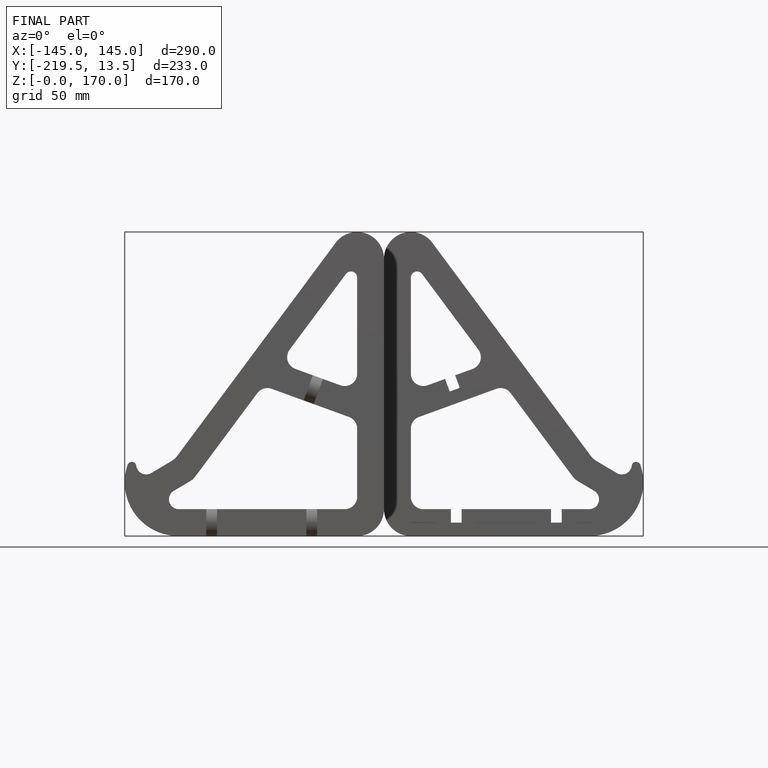
[diagram: finished part — front view with bounding-box wireframe]
